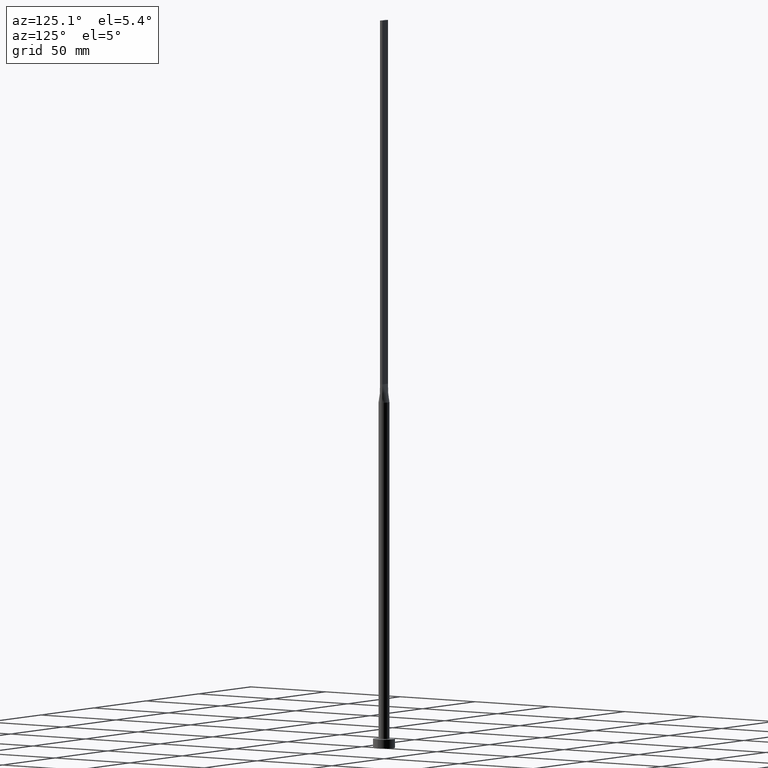
[diagram: clean part render]
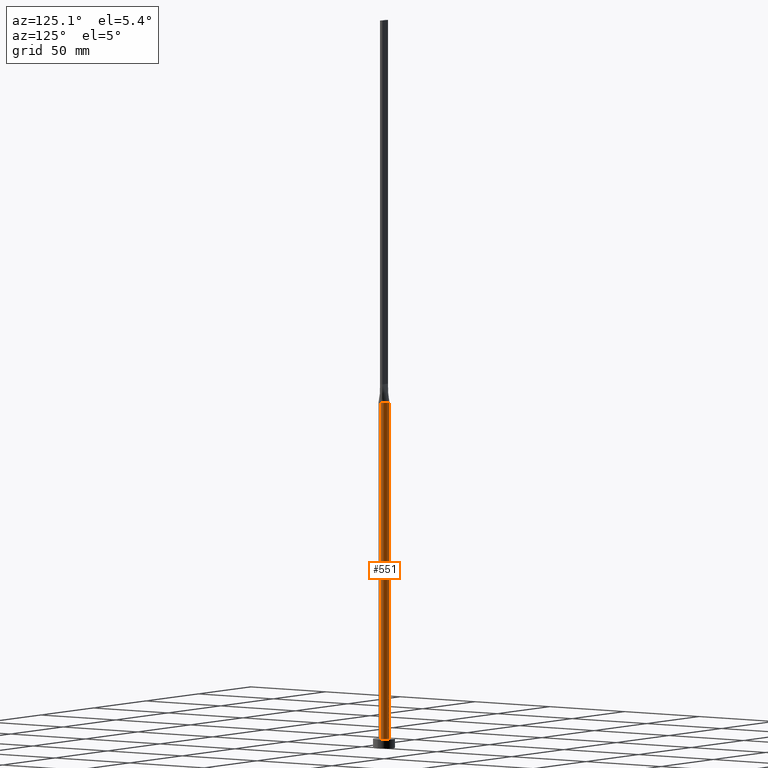
[diagram: same view with one face highlighted and labeled with its STEP entity id]
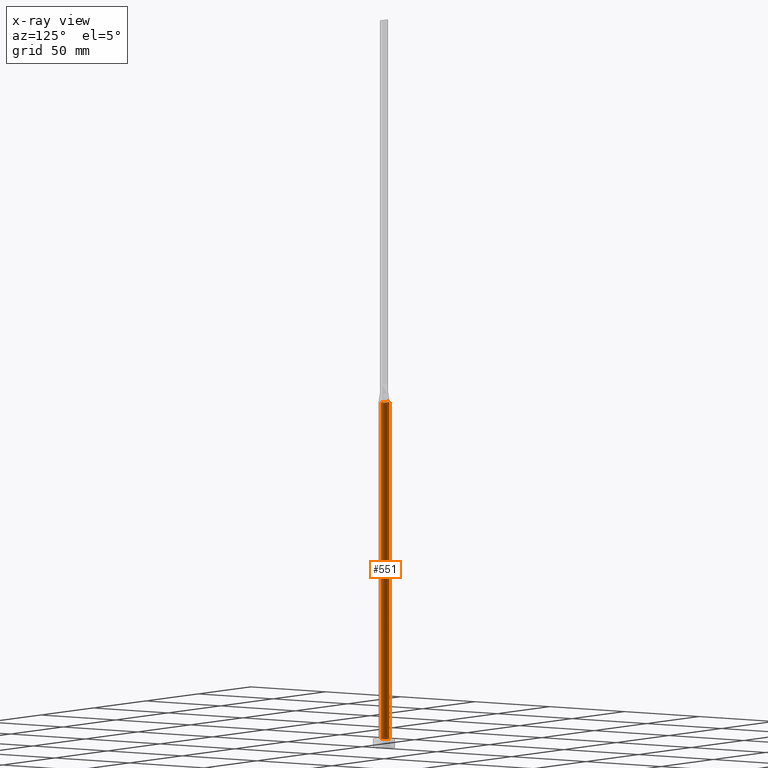
[diagram: x-ray of the same camera — body ghosted, the highlighted face saturated]
A machine part, auxiliary view. The second image highlights one B-rep face of the part: STEP entity #551.
The next image is the same camera in x-ray: the body ghosted, the highlighted face saturated — about 0% of this face is hidden behind the body in this view.
In plain terms, the highlighted cylindrical surface (edge-blend (fillet) strip) has radius 3 mm, axis along (-0, -0, -1).
Its self-contained STEP definition (entity closure, byte-faithful):
#2 = CARTESIAN_POINT ( 'NONE',  ( 0.000000000000000000, 0.000000000000000000, 5.000000000000000000 ) ) ;
#3 = AXIS2_PLACEMENT_3D ( 'NONE', #448, #223, #444 ) ;
#18 = EDGE_CURVE ( 'NONE', #446, #440, #275, .T. ) ;
#19 = CARTESIAN_POINT ( 'NONE',  ( 1.751288851749022379, 2.458468820606022565, 189.9999999999999716 ) ) ;
#56 = CARTESIAN_POINT ( 'NONE',  ( -2.894506632021299541, 0.7894116946786272626, 190.0000000000000000 ) ) ;
#58 = B_SPLINE_CURVE_WITH_KNOTS ( 'NONE', 3,
 ( #508, #324, #512, #505, #156, #19, #369, #145, #458, #333, #70, #110, #285, #501, #466, #469, #280, #112 ),
 .UNSPECIFIED., .F., .F.,
 ( 4, 2, 2, 2, 2, 2, 2, 2, 4 ),
 ( 0.000000000000000000, 0.1250000000000000000, 0.2500000000000000000, 0.3750000000000000000, 0.5000000000000000000, 0.6250000000000000000, 0.7500000000000000000, 0.8750000000000000000, 1.000000000000000000 ),
 .UNSPECIFIED. ) ;
#65 = VERTEX_POINT ( 'NONE', #315 ) ;
#68 = FACE_OUTER_BOUND ( 'NONE', #146, .T. ) ;
#70 = CARTESIAN_POINT ( 'NONE',  ( -0.7628506052746797383, 2.924692134573155133, 190.0000000000000284 ) ) ;
#82 = AXIS2_PLACEMENT_3D ( 'NONE', #2, #219, #100 ) ;
#100 = DIRECTION ( 'NONE',  ( 1.000000000000000000, 0.000000000000000000, 0.000000000000000000 ) ) ;
#103 = EDGE_CURVE ( 'NONE', #349, #440, #434, .T. ) ;
#110 = CARTESIAN_POINT ( 'NONE',  ( -1.447928580458858416, 2.653161878569119558, 189.9999999999999716 ) ) ;
#112 = CARTESIAN_POINT ( 'NONE',  ( -2.894506632021299541, 0.7894116946786272626, 190.0000000000000000 ) ) ;
#121 = DIRECTION ( 'NONE',  ( -0.000000000000000000, -0.000000000000000000, -1.000000000000000000 ) ) ;
#128 = VERTEX_POINT ( 'NONE', #453 ) ;
#137 = DIRECTION ( 'NONE',  ( 1.000000000000000000, 0.000000000000000000, 0.000000000000000000 ) ) ;
#141 = CARTESIAN_POINT ( 'NONE',  ( -3.000000000000000444, 0.000000000000000000, 190.0000000000000000 ) ) ;
#145 = CARTESIAN_POINT ( 'NONE',  ( 0.7628506052746800714, 2.924692134573154689, 190.0000000000000284 ) ) ;
#146 = EDGE_LOOP ( 'NONE', ( #151, #563, #231, #540, #343, #534 ) ) ;
#151 = ORIENTED_EDGE ( 'NONE', *, *, #465, .F. ) ;
#156 = CARTESIAN_POINT ( 'NONE',  ( 2.248179627679386172, 2.014142483996539834, 190.0000000000000284 ) ) ;
#203 = DIRECTION ( 'NONE',  ( -0.000000000000000000, -0.000000000000000000, -1.000000000000000000 ) ) ;
#214 = CARTESIAN_POINT ( 'NONE',  ( 0.000000000000000000, 0.000000000000000000, 190.0000000000000000 ) ) ;
#219 = DIRECTION ( 'NONE',  ( 0.000000000000000000, 0.000000000000000000, 1.000000000000000000 ) ) ;
#221 = EDGE_CURVE ( 'NONE', #128, #381, #58, .T. ) ;
#223 = DIRECTION ( 'NONE',  ( 0.000000000000000000, 0.000000000000000000, 1.000000000000000000 ) ) ;
#231 = ORIENTED_EDGE ( 'NONE', *, *, #103, .T. ) ;
#234 = CIRCLE ( 'NONE', #367, 3.000000000000000444 ) ;
#275 = LINE ( 'NONE', #141, #535 ) ;
#280 = CARTESIAN_POINT ( 'NONE',  ( -2.830829925251659329, 1.022044525068634302, 190.0000000000000568 ) ) ;
#285 = CARTESIAN_POINT ( 'NONE',  ( -1.751288851749021491, 2.458468820606022565, 190.0000000000000284 ) ) ;
#303 = CARTESIAN_POINT ( 'NONE',  ( 3.000000000000000444, 3.673940397442060361E-16, 190.0000000000000000 ) ) ;
#315 = CARTESIAN_POINT ( 'NONE',  ( 3.000000000000000888, 4.817174831141495148E-17, 190.0000000000000284 ) ) ;
#324 = CARTESIAN_POINT ( 'NONE',  ( 2.830829925251657997, 1.022044525068634302, 190.0000000000000000 ) ) ;
#329 = AXIS2_PLACEMENT_3D ( 'NONE', #382, #203, #338 ) ;
#332 = EDGE_CURVE ( 'NONE', #381, #446, #234, .T. ) ;
#333 = CARTESIAN_POINT ( 'NONE',  ( -0.3818979204996078569, 3.000000000000000888, 190.0000000000000284 ) ) ;
#338 = DIRECTION ( 'NONE',  ( -1.000000000000000000, 0.000000000000000000, 0.000000000000000000 ) ) ;
#343 = ORIENTED_EDGE ( 'NONE', *, *, #332, .F. ) ;
#349 = VERTEX_POINT ( 'NONE', #373 ) ;
#367 = AXIS2_PLACEMENT_3D ( 'NONE', #214, #390, #137 ) ;
#369 = CARTESIAN_POINT ( 'NONE',  ( 1.447928580458859305, 2.653161878569118670, 190.0000000000000284 ) ) ;
#373 = CARTESIAN_POINT ( 'NONE',  ( 3.000000000000000444, 3.673940397442060361E-16, 5.000000000000000000 ) ) ;
#381 = VERTEX_POINT ( 'NONE', #56 ) ;
#382 = CARTESIAN_POINT ( 'NONE',  ( 0.000000000000000000, 0.000000000000000000, 190.0000000000000000 ) ) ;
#386 = CARTESIAN_POINT ( 'NONE',  ( -3.000000000000000000, -1.912111867153115409E-16, 190.0000000000000284 ) ) ;
#390 = DIRECTION ( 'NONE',  ( 0.000000000000000000, 0.000000000000000000, 1.000000000000000000 ) ) ;
#434 = CIRCLE ( 'NONE', #82, 3.000000000000000444 ) ;
#440 = VERTEX_POINT ( 'NONE', #559 ) ;
#444 = DIRECTION ( 'NONE',  ( 1.000000000000000000, 0.000000000000000000, 0.000000000000000000 ) ) ;
#446 = VERTEX_POINT ( 'NONE', #386 ) ;
#448 = CARTESIAN_POINT ( 'NONE',  ( 0.000000000000000000, 0.000000000000000000, 190.0000000000000000 ) ) ;
#453 = CARTESIAN_POINT ( 'NONE',  ( 2.894482401701604424, 0.7894050286368272662, 190.0000000000000000 ) ) ;
#454 = EDGE_CURVE ( 'NONE', #65, #349, #578, .T. ) ;
#458 = CARTESIAN_POINT ( 'NONE',  ( 0.3818979204996085230, 3.000000000000001332, 190.0000000000000284 ) ) ;
#461 = VECTOR ( 'NONE', #121, 1000.000000000000000 ) ;
#465 = EDGE_CURVE ( 'NONE', #65, #128, #561, .T. ) ;
#466 = CARTESIAN_POINT ( 'NONE',  ( -2.442412046818596139, 1.765588549521969641, 190.0000000000000284 ) ) ;
#469 = CARTESIAN_POINT ( 'NONE',  ( -2.733316749964668002, 1.269511353635830453, 190.0000000000000284 ) ) ;
#492 = DIRECTION ( 'NONE',  ( -0.000000000000000000, -0.000000000000000000, -1.000000000000000000 ) ) ;
#501 = CARTESIAN_POINT ( 'NONE',  ( -2.248179627679385728, 2.014142483996540278, 189.9999999999999716 ) ) ;
#505 = CARTESIAN_POINT ( 'NONE',  ( 2.442412046818595250, 1.765588549521970529, 190.0000000000000568 ) ) ;
#508 = CARTESIAN_POINT ( 'NONE',  ( 2.894482401701604424, 0.7894050286368272662, 190.0000000000000000 ) ) ;
#512 = CARTESIAN_POINT ( 'NONE',  ( 2.733316749964668446, 1.269511353635831341, 189.9999999999999716 ) ) ;
#534 = ORIENTED_EDGE ( 'NONE', *, *, #221, .F. ) ;
#535 = VECTOR ( 'NONE', #492, 1000.000000000000000 ) ;
#540 = ORIENTED_EDGE ( 'NONE', *, *, #18, .F. ) ;
#551 = ADVANCED_FACE ( 'NONE', ( #68 ), #560, .T. ) ;
#559 = CARTESIAN_POINT ( 'NONE',  ( -3.000000000000000444, 0.000000000000000000, 5.000000000000000000 ) ) ;
#560 = CYLINDRICAL_SURFACE ( 'NONE', #329, 3.000000000000000444 ) ;
#561 = CIRCLE ( 'NONE', #3, 3.000000000000000444 ) ;
#563 = ORIENTED_EDGE ( 'NONE', *, *, #454, .T. ) ;
#578 = LINE ( 'NONE', #303, #461 ) ;